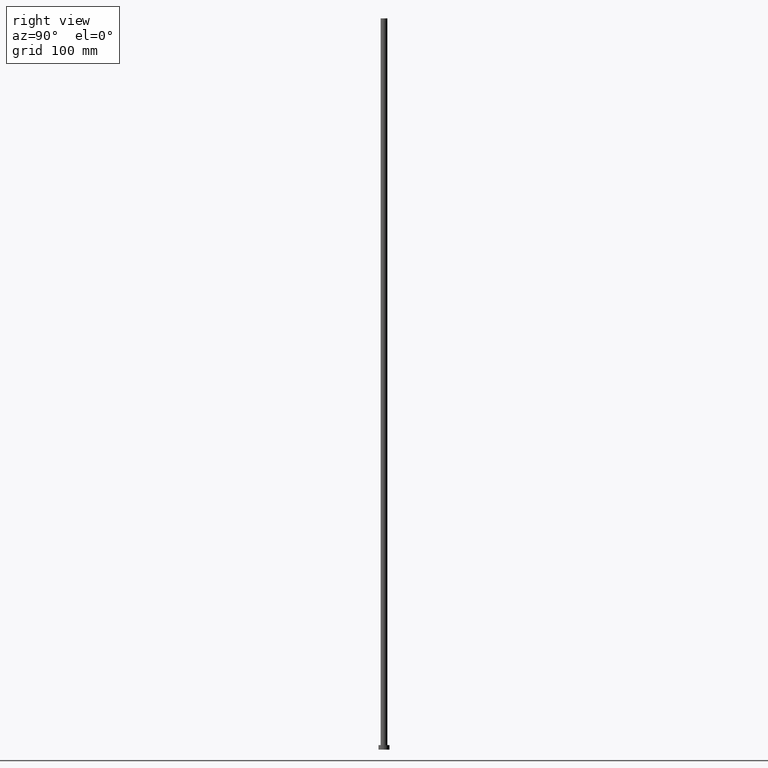
[diagram: clean part render]
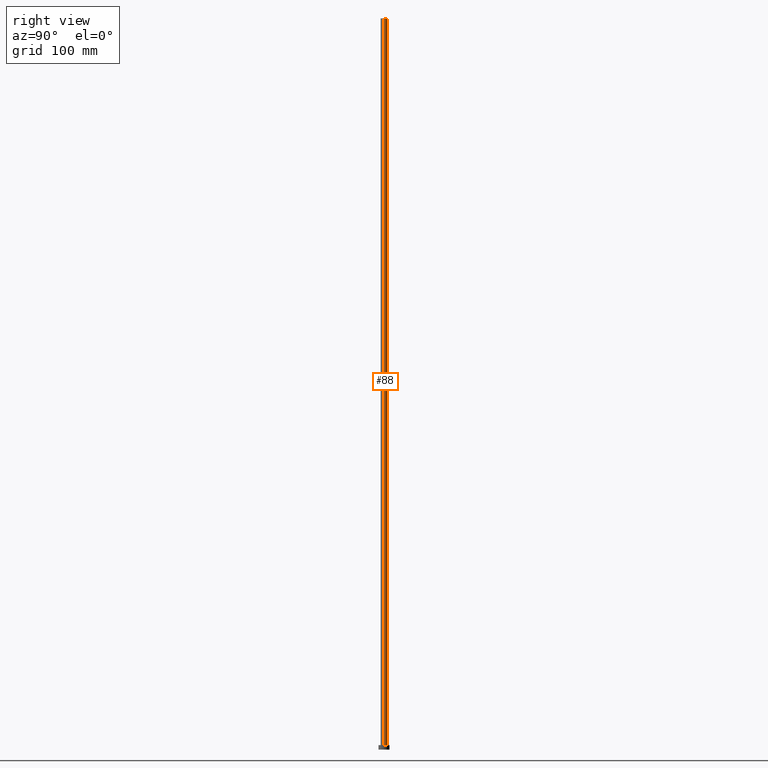
[diagram: same view with one face highlighted and labeled with its STEP entity id]
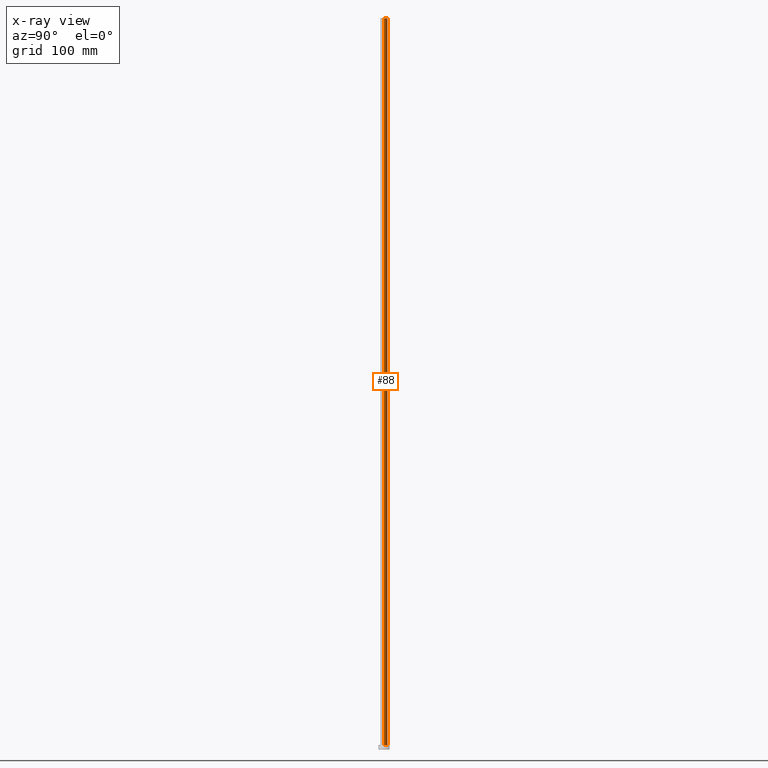
[diagram: x-ray of the same camera — body ghosted, the highlighted face saturated]
A machine part, right view. The second image highlights one B-rep face of the part: STEP entity #88.
The next image is the same camera in x-ray: the body ghosted, the highlighted face saturated — about 0% of this face is hidden behind the body in this view.
In plain terms, the highlighted cylindrical surface (edge-blend (fillet) strip) has radius 3.75 mm, axis along (-0, -0, -1).
Its self-contained STEP definition (entity closure, byte-faithful):
#1 = EDGE_CURVE ( 'NONE', #215, #52, #128, .T. ) ;
#5 = CARTESIAN_POINT ( 'NONE',  ( 0.000000000000000000, 0.000000000000000000, 5.000000000000000000 ) ) ;
#7 = AXIS2_PLACEMENT_3D ( 'NONE', #5, #58, #42 ) ;
#13 = CARTESIAN_POINT ( 'NONE',  ( 3.750000000000000000, 4.592425496802573972E-16, 800.0000000000000000 ) ) ;
#20 = CARTESIAN_POINT ( 'NONE',  ( -3.750000000000000000, 0.000000000000000000, 800.0000000000000000 ) ) ;
#26 = DIRECTION ( 'NONE',  ( 1.000000000000000000, 0.000000000000000000, 0.000000000000000000 ) ) ;
#37 = CARTESIAN_POINT ( 'NONE',  ( 3.750000000000000000, 4.592425496802573972E-16, 800.0000000000000000 ) ) ;
#42 = DIRECTION ( 'NONE',  ( 1.000000000000000000, 0.000000000000000000, 0.000000000000000000 ) ) ;
#48 = VERTEX_POINT ( 'NONE', #192 ) ;
#52 = VERTEX_POINT ( 'NONE', #109 ) ;
#58 = DIRECTION ( 'NONE',  ( 0.000000000000000000, 0.000000000000000000, 1.000000000000000000 ) ) ;
#70 = ORIENTED_EDGE ( 'NONE', *, *, #181, .F. ) ;
#76 = DIRECTION ( 'NONE',  ( -0.000000000000000000, -0.000000000000000000, -1.000000000000000000 ) ) ;
#85 = AXIS2_PLACEMENT_3D ( 'NONE', #220, #76, #120 ) ;
#88 = ADVANCED_FACE ( 'NONE', ( #94 ), #236, .T. ) ;
#90 = AXIS2_PLACEMENT_3D ( 'NONE', #99, #117, #26 ) ;
#91 = ORIENTED_EDGE ( 'NONE', *, *, #131, .F. ) ;
#94 = FACE_OUTER_BOUND ( 'NONE', #152, .T. ) ;
#99 = CARTESIAN_POINT ( 'NONE',  ( 0.000000000000000000, 0.000000000000000000, 800.0000000000000000 ) ) ;
#109 = CARTESIAN_POINT ( 'NONE',  ( 3.750000000000000000, 4.592425496802573972E-16, 5.000000000000000000 ) ) ;
#111 = VECTOR ( 'NONE', #168, 1000.000000000000000 ) ;
#114 = DIRECTION ( 'NONE',  ( -0.000000000000000000, -0.000000000000000000, -1.000000000000000000 ) ) ;
#115 = ORIENTED_EDGE ( 'NONE', *, *, #1, .T. ) ;
#117 = DIRECTION ( 'NONE',  ( 0.000000000000000000, 0.000000000000000000, 1.000000000000000000 ) ) ;
#120 = DIRECTION ( 'NONE',  ( -1.000000000000000000, 0.000000000000000000, 0.000000000000000000 ) ) ;
#128 = LINE ( 'NONE', #13, #111 ) ;
#131 = EDGE_CURVE ( 'NONE', #215, #235, #147, .T. ) ;
#138 = CARTESIAN_POINT ( 'NONE',  ( -3.750000000000000000, 0.000000000000000000, 800.0000000000000000 ) ) ;
#147 = CIRCLE ( 'NONE', #90, 3.750000000000000000 ) ;
#152 = EDGE_LOOP ( 'NONE', ( #91, #115, #217, #70 ) ) ;
#155 = EDGE_CURVE ( 'NONE', #52, #48, #240, .T. ) ;
#168 = DIRECTION ( 'NONE',  ( -0.000000000000000000, -0.000000000000000000, -1.000000000000000000 ) ) ;
#177 = LINE ( 'NONE', #20, #202 ) ;
#181 = EDGE_CURVE ( 'NONE', #235, #48, #177, .T. ) ;
#192 = CARTESIAN_POINT ( 'NONE',  ( -3.750000000000000000, 0.000000000000000000, 5.000000000000000000 ) ) ;
#202 = VECTOR ( 'NONE', #114, 1000.000000000000000 ) ;
#215 = VERTEX_POINT ( 'NONE', #37 ) ;
#217 = ORIENTED_EDGE ( 'NONE', *, *, #155, .T. ) ;
#220 = CARTESIAN_POINT ( 'NONE',  ( 0.000000000000000000, 0.000000000000000000, 800.0000000000000000 ) ) ;
#235 = VERTEX_POINT ( 'NONE', #138 ) ;
#236 = CYLINDRICAL_SURFACE ( 'NONE', #85, 3.750000000000000000 ) ;
#240 = CIRCLE ( 'NONE', #7, 3.750000000000000000 ) ;